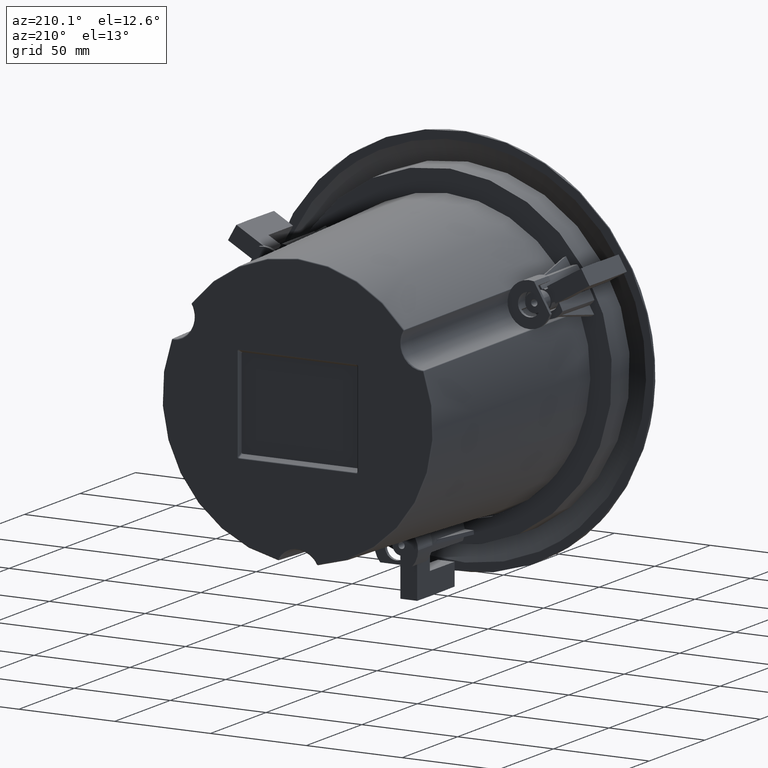
[diagram: clean part render]
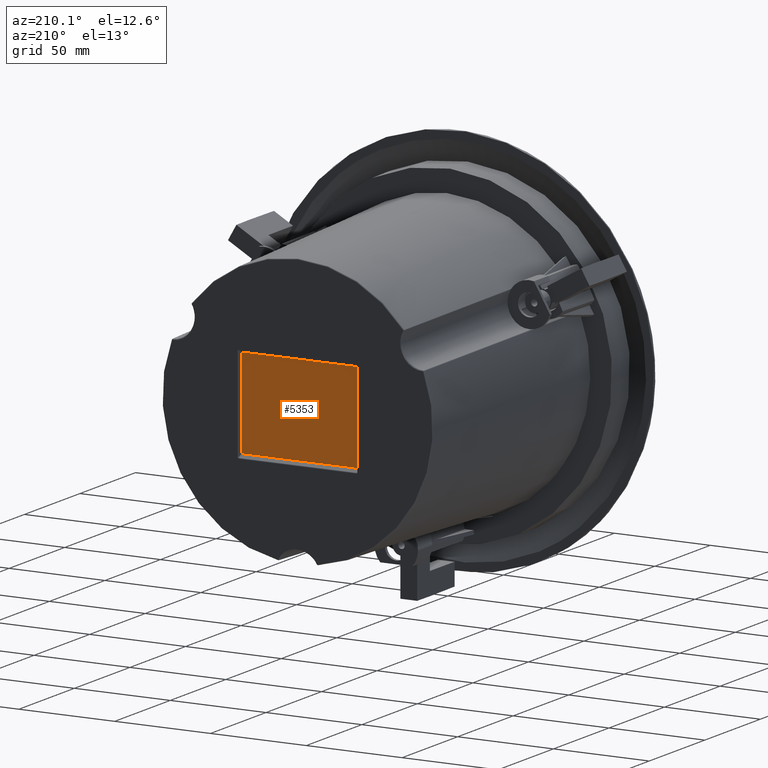
[diagram: same view with one face highlighted and labeled with its STEP entity id]
A machine part, auxiliary view. The second image highlights one B-rep face of the part: STEP entity #5353.
In plain terms, the highlighted planar face has unit normal (0, -1, 0).
Its self-contained STEP definition (entity closure, byte-faithful):
#14 = CARTESIAN_POINT ( 'NONE',  ( 30.50000000000000355, 132.1999999999999886, -23.49999999999991118 ) ) ;
#236 = CARTESIAN_POINT ( 'NONE',  ( 31.00000000000000355, 132.1999999999999886, 22.94098300562494330 ) ) ;
#629 = ORIENTED_EDGE ( 'NONE', *, *, #6931, .F. ) ;
#1173 = CARTESIAN_POINT ( 'NONE',  ( 31.00000000000000355, 132.1999999999999886, -23.26844757933275432 ) ) ;
#1192 = CARTESIAN_POINT ( 'NONE',  ( -30.50000000000000355, 132.1999999999999886, 23.49999999999990408 ) ) ;
#1551 = CARTESIAN_POINT ( 'NONE',  ( -31.00000000000000711, 132.1999999999999886, 8.604228440844960033E-15 ) ) ;
#1688 = EDGE_CURVE ( 'NONE', #18453, #5352, #12292, .T. ) ;
#1761 = EDGE_CURVE ( 'NONE', #16369, #16802, #18437, .T. ) ;
#1931 = FACE_OUTER_BOUND ( 'NONE', #4548, .T. ) ;
#2162 = DIRECTION ( 'NONE',  ( 1.000000000000000000, 0.0000000000000000000, -2.238352872228140636E-16 ) ) ;
#2472 = EDGE_CURVE ( 'NONE', #9340, #16369, #13467, .T. ) ;
#2544 =( BOUNDED_CURVE ( )  B_SPLINE_CURVE ( 3, ( #1192, #6935, #9999, #5716 ),
 .UNSPECIFIED., .F., .T. ) 
 B_SPLINE_CURVE_WITH_KNOTS ( ( 4, 4 ),
 ( 7.249210673063240760E-15, 1.570796326794915432 ),
 .UNSPECIFIED. ) 
 CURVE ( )  GEOMETRIC_REPRESENTATION_ITEM ( )  RATIONAL_B_SPLINE_CURVE ( ( 1.000000000000000000, 0.8047378541243622729, 0.8047378541243622729, 1.000000000000000000 ) ) 
 REPRESENTATION_ITEM ( '' )  );
#3353 = PLANE ( 'NONE',  #14628 ) ;
#3673 = CARTESIAN_POINT ( 'NONE',  ( 31.00000000000000000, 132.1999999999999886, 23.26844757933274366 ) ) ;
#3855 = VECTOR ( 'NONE', #8262, 1000.000000000000000 ) ;
#4219 = CARTESIAN_POINT ( 'NONE',  ( 30.79289321881346098, 132.1999999999999886, -23.49999999999990052 ) ) ;
#4548 = EDGE_LOOP ( 'NONE', ( #17148, #17421, #629, #14243, #12478, #8946, #17248, #15448 ) ) ;
#4584 = CARTESIAN_POINT ( 'NONE',  ( 30.50000000000000355, 132.1999999999999886, -23.49999999999991118 ) ) ;
#4954 = VERTEX_POINT ( 'NONE', #14881 ) ;
#5014 = CARTESIAN_POINT ( 'NONE',  ( 30.79289321881346098, 132.1999999999999886, 23.49999999999988631 ) ) ;
#5045 = LINE ( 'NONE', #16849, #3855 ) ;
#5181 = LINE ( 'NONE', #12112, #17772 ) ;
#5198 = CARTESIAN_POINT ( 'NONE',  ( 30.50000000000000355, 132.1999999999999886, 23.49999999999988987 ) ) ;
#5352 = VERTEX_POINT ( 'NONE', #236 ) ;
#5353 = ADVANCED_FACE ( 'NONE', ( #1931 ), #3353, .F. ) ;
#5716 = CARTESIAN_POINT ( 'NONE',  ( -31.00000000000000000, 132.1999999999999886, 22.94098300562495396 ) ) ;
#6226 = VECTOR ( 'NONE', #17857, 1000.000000000000000 ) ;
#6931 = EDGE_CURVE ( 'NONE', #5352, #12825, #12215, .T. ) ;
#6935 = CARTESIAN_POINT ( 'NONE',  ( -30.79289321881346453, 132.1999999999999886, 23.49999999999990763 ) ) ;
#7610 = CARTESIAN_POINT ( 'NONE',  ( 31.00000000000000000, 132.1999999999999886, -22.94098300562495396 ) ) ;
#7699 = DIRECTION ( 'NONE',  ( 0.0000000000000000000, 0.0000000000000000000, -1.000000000000000000 ) ) ;
#8051 = CARTESIAN_POINT ( 'NONE',  ( 31.00000000000000355, 132.1999999999999886, 22.94098300562494330 ) ) ;
#8262 = DIRECTION ( 'NONE',  ( -1.000000000000000000, 0.0000000000000000000, 2.238352872228140636E-16 ) ) ;
#8407 = CARTESIAN_POINT ( 'NONE',  ( -30.79289321881347163, 132.1999999999999886, -23.49999999999989697 ) ) ;
#8652 = EDGE_CURVE ( 'NONE', #9282, #16802, #5045, .T. ) ;
#8946 = ORIENTED_EDGE ( 'NONE', *, *, #8652, .T. ) ;
#9282 = VERTEX_POINT ( 'NONE', #4584 ) ;
#9340 = VERTEX_POINT ( 'NONE', #14729 ) ;
#9683 = CARTESIAN_POINT ( 'NONE',  ( -30.50000000000001421, 132.1999999999999886, -23.49999999999988987 ) ) ;
#9999 = CARTESIAN_POINT ( 'NONE',  ( -31.00000000000000355, 132.1999999999999886, 23.26844757933275432 ) ) ;
#10569 = CARTESIAN_POINT ( 'NONE',  ( 0.0000000000000000000, 132.1999999999999886, 0.0000000000000000000 ) ) ;
#10733 = EDGE_CURVE ( 'NONE', #4954, #12825, #5181, .T. ) ;
#10995 = EDGE_CURVE ( 'NONE', #4954, #9340, #2544, .T. ) ;
#11015 = VECTOR ( 'NONE', #14636, 1000.000000000000000 ) ;
#12109 = EDGE_CURVE ( 'NONE', #9282, #18453, #17474, .T. ) ;
#12112 = CARTESIAN_POINT ( 'NONE',  ( 5.260129249736106976E-15, 132.1999999999999886, 23.49999999999989697 ) ) ;
#12215 =( BOUNDED_CURVE ( )  B_SPLINE_CURVE ( 3, ( #8051, #3673, #5014, #5198 ),
 .UNSPECIFIED., .F., .T. ) 
 B_SPLINE_CURVE_WITH_KNOTS ( ( 4, 4 ),
 ( 1.570796326794896780, 3.141592653589793116 ),
 .UNSPECIFIED. ) 
 CURVE ( )  GEOMETRIC_REPRESENTATION_ITEM ( )  RATIONAL_B_SPLINE_CURVE ( ( 1.000000000000000000, 0.8047378541243650485, 0.8047378541243650485, 1.000000000000000000 ) ) 
 REPRESENTATION_ITEM ( '' )  );
#12292 = LINE ( 'NONE', #13496, #6226 ) ;
#12478 = ORIENTED_EDGE ( 'NONE', *, *, #12109, .F. ) ;
#12825 = VERTEX_POINT ( 'NONE', #15266 ) ;
#13073 = CARTESIAN_POINT ( 'NONE',  ( 31.00000000000000000, 132.1999999999999886, -22.94098300562495396 ) ) ;
#13467 = LINE ( 'NONE', #1551, #11015 ) ;
#13496 = CARTESIAN_POINT ( 'NONE',  ( 31.00000000000000355, 132.1999999999999886, -2.151057110211241586E-15 ) ) ;
#14243 = ORIENTED_EDGE ( 'NONE', *, *, #1688, .F. ) ;
#14628 = AXIS2_PLACEMENT_3D ( 'NONE', #10569, #17838, #7699 ) ;
#14636 = DIRECTION ( 'NONE',  ( -2.775557561562889872E-16, 0.0000000000000000000, -1.000000000000000000 ) ) ;
#14729 = CARTESIAN_POINT ( 'NONE',  ( -31.00000000000000000, 132.1999999999999886, 22.94098300562495396 ) ) ;
#14881 = CARTESIAN_POINT ( 'NONE',  ( -30.50000000000000355, 132.1999999999999886, 23.49999999999990408 ) ) ;
#15132 = CARTESIAN_POINT ( 'NONE',  ( -31.00000000000001421, 132.1999999999999886, -23.26844757933274721 ) ) ;
#15266 = CARTESIAN_POINT ( 'NONE',  ( 30.50000000000000355, 132.1999999999999886, 23.49999999999988987 ) ) ;
#15320 = CARTESIAN_POINT ( 'NONE',  ( -30.50000000000001421, 132.1999999999999886, -23.49999999999988987 ) ) ;
#15448 = ORIENTED_EDGE ( 'NONE', *, *, #2472, .F. ) ;
#16369 = VERTEX_POINT ( 'NONE', #18118 ) ;
#16802 = VERTEX_POINT ( 'NONE', #9683 ) ;
#16849 = CARTESIAN_POINT ( 'NONE',  ( -5.260129249736106976E-15, 132.1999999999999886, -23.49999999999989697 ) ) ;
#17148 = ORIENTED_EDGE ( 'NONE', *, *, #10995, .F. ) ;
#17248 = ORIENTED_EDGE ( 'NONE', *, *, #1761, .F. ) ;
#17421 = ORIENTED_EDGE ( 'NONE', *, *, #10733, .T. ) ;
#17474 =( BOUNDED_CURVE ( )  B_SPLINE_CURVE ( 3, ( #14, #4219, #1173, #13073 ),
 .UNSPECIFIED., .F., .T. ) 
 B_SPLINE_CURVE_WITH_KNOTS ( ( 4, 4 ),
 ( 7.016473096196180986E-15, 1.570796326794908992 ),
 .UNSPECIFIED. ) 
 CURVE ( )  GEOMETRIC_REPRESENTATION_ITEM ( )  RATIONAL_B_SPLINE_CURVE ( ( 1.000000000000000000, 0.8047378541243637162, 0.8047378541243637162, 1.000000000000000000 ) ) 
 REPRESENTATION_ITEM ( '' )  );
#17772 = VECTOR ( 'NONE', #2162, 1000.000000000000000 ) ;
#17838 = DIRECTION ( 'NONE',  ( 0.0000000000000000000, -1.000000000000000000, 0.0000000000000000000 ) ) ;
#17857 = DIRECTION ( 'NONE',  ( 6.938893903907229610E-17, 0.0000000000000000000, 1.000000000000000000 ) ) ;
#17942 = CARTESIAN_POINT ( 'NONE',  ( -31.00000000000001421, 132.1999999999999886, -22.94098300562494330 ) ) ;
#18118 = CARTESIAN_POINT ( 'NONE',  ( -31.00000000000001421, 132.1999999999999886, -22.94098300562494330 ) ) ;
#18437 =( BOUNDED_CURVE ( )  B_SPLINE_CURVE ( 3, ( #17942, #15132, #8407, #15320 ),
 .UNSPECIFIED., .F., .T. ) 
 B_SPLINE_CURVE_WITH_KNOTS ( ( 4, 4 ),
 ( 1.570796326794884346, 3.141592653589793116 ),
 .UNSPECIFIED. ) 
 CURVE ( )  GEOMETRIC_REPRESENTATION_ITEM ( )  RATIONAL_B_SPLINE_CURVE ( ( 1.000000000000000000, 0.8047378541243621619, 0.8047378541243621619, 1.000000000000000000 ) ) 
 REPRESENTATION_ITEM ( '' )  );
#18453 = VERTEX_POINT ( 'NONE', #7610 ) ;